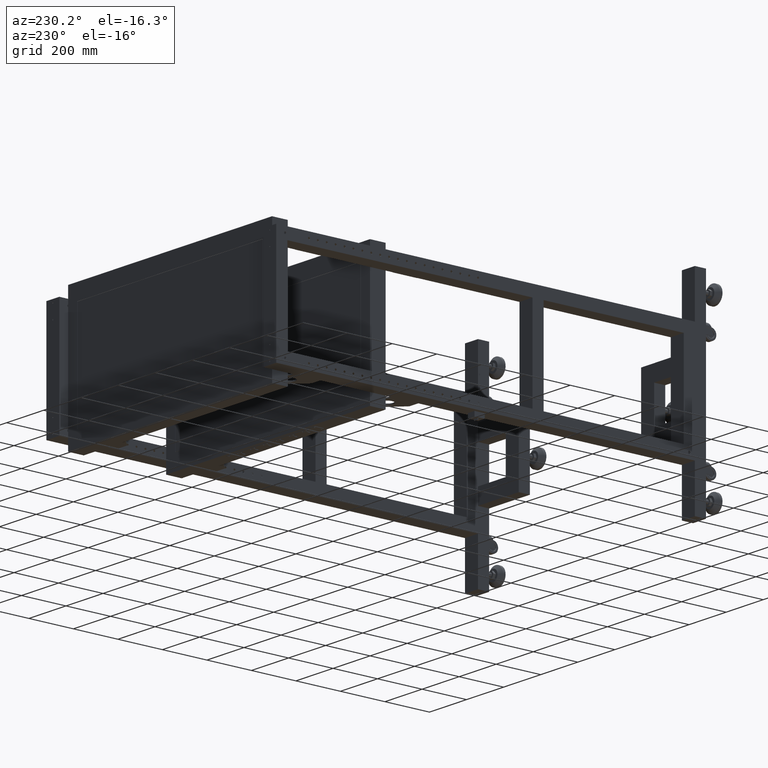
[diagram: clean part render]
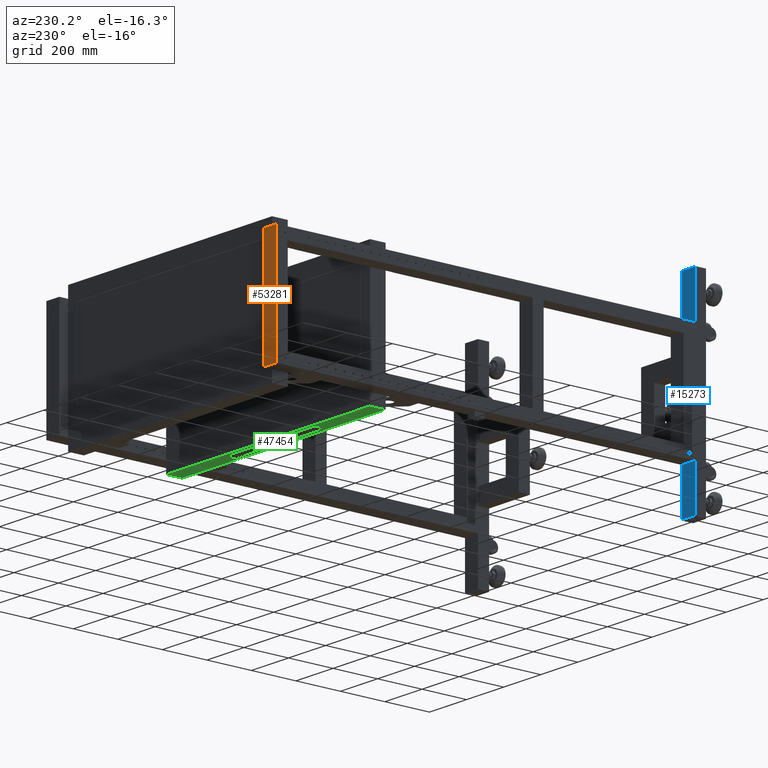
[diagram: same view with three faces highlighted in distinct colors, each labeled with its STEP entity id]
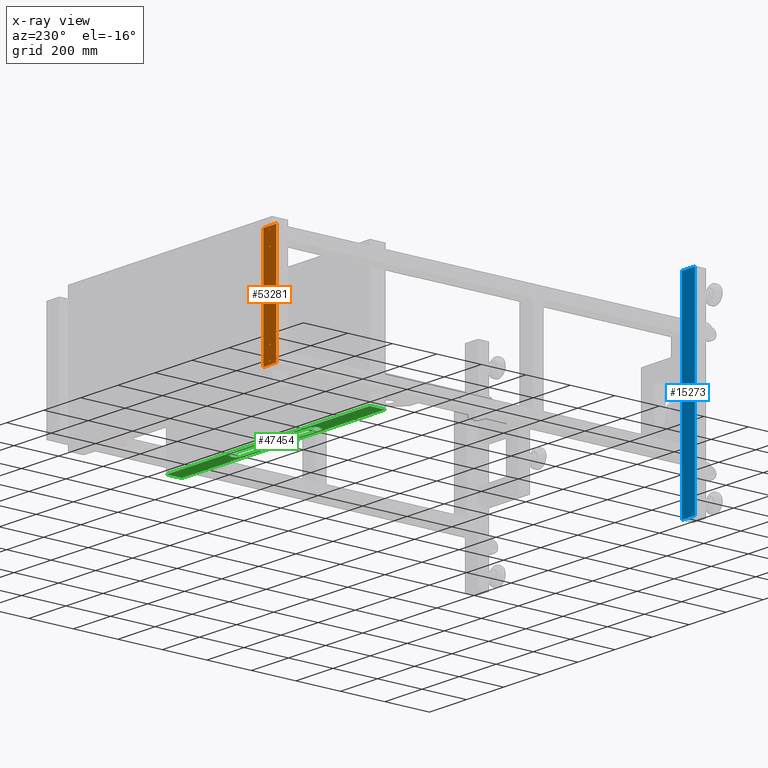
[diagram: x-ray of the same camera — body ghosted, the three highlighted faces saturated]
A machine part, auxiliary view with three faces highlighted in distinct colors.
The next image is the same camera in x-ray (body ghosted, the three faces saturated) — at least one of them is partly hidden behind the body in this view.
Their STEP definitions:

[orange] entity #53281 — the highlighted planar face has unit normal (-0, 1, 0).
#724 = CARTESIAN_POINT ( 'NONE',  ( -1268.172487437185964, 1036.441080402011039, 250.0000000000000000 ) ) ;
#1168 = DIRECTION ( 'NONE',  ( -1.000000000000000000, 0.000000000000000000, 0.000000000000000000 ) ) ;
#1653 = ORIENTED_EDGE ( 'NONE', *, *, #37654, .F. ) ;
#2034 = CARTESIAN_POINT ( 'NONE',  ( -1303.172487437186192, 1036.441080402011266, -173.9000000000000057 ) ) ;
#2188 = CARTESIAN_POINT ( 'NONE',  ( -1303.172487437186192, 1036.441080402011266, 178.0999999999999943 ) ) ;
#3969 = VERTEX_POINT ( 'NONE', #11442 ) ;
#4179 = DIRECTION ( 'NONE',  ( 0.000000000000000000, 0.000000000000000000, 1.000000000000000000 ) ) ;
#4724 = EDGE_CURVE ( 'NONE', #37463, #23758, #45545, .T. ) ;
#4791 = FACE_BOUND ( 'NONE', #45252, .T. ) ;
#7028 = EDGE_LOOP ( 'NONE', ( #25712, #56418 ) ) ;
#8930 = DIRECTION ( 'NONE',  ( 0.000000000000000000, 0.000000000000000000, 1.000000000000000000 ) ) ;
#9156 = CARTESIAN_POINT ( 'NONE',  ( -1303.172487437186192, 1036.441080402011266, -176.0000000000000000 ) ) ;
#9282 = FACE_BOUND ( 'NONE', #7028, .T. ) ;
#9719 = ORIENTED_EDGE ( 'NONE', *, *, #62881, .T. ) ;
#10814 = LINE ( 'NONE', #43172, #61868 ) ;
#10844 = DIRECTION ( 'NONE',  ( 0.000000000000000000, 1.000000000000000000, 0.000000000000000000 ) ) ;
#11095 = VERTEX_POINT ( 'NONE', #37722 ) ;
#11182 = CARTESIAN_POINT ( 'NONE',  ( -1303.172487437186192, 1036.441080402011266, 236.0000000000000000 ) ) ;
#11265 = DIRECTION ( 'NONE',  ( 0.000000000000000000, 1.000000000000000000, 0.000000000000000000 ) ) ;
#11442 = CARTESIAN_POINT ( 'NONE',  ( -1268.172487437185964, 1036.441080402011039, -250.0000000000000000 ) ) ;
#11636 = DIRECTION ( 'NONE',  ( 0.000000000000000000, 1.000000000000000000, 0.000000000000000000 ) ) ;
#13233 = EDGE_CURVE ( 'NONE', #63571, #40450, #13278, .T. ) ;
#13278 = CIRCLE ( 'NONE', #59497, 2.099999999999990763 ) ;
#13753 = DIRECTION ( 'NONE',  ( 0.000000000000000000, 1.000000000000000000, 0.000000000000000000 ) ) ;
#14728 = CARTESIAN_POINT ( 'NONE',  ( -1268.172487437185964, 1036.441080402011039, 248.0000000000000000 ) ) ;
#15119 = DIRECTION ( 'NONE',  ( 1.000000000000000000, 0.000000000000000000, 0.000000000000000000 ) ) ;
#15655 = DIRECTION ( 'NONE',  ( 0.000000000000000000, 0.000000000000000000, 1.000000000000000000 ) ) ;
#15855 = CIRCLE ( 'NONE', #19146, 2.099999999999990763 ) ;
#16365 = CARTESIAN_POINT ( 'NONE',  ( -1303.172487437186192, 1036.441080402011266, 236.0000000000000000 ) ) ;
#17783 = EDGE_LOOP ( 'NONE', ( #1653, #67075, #32835, #9719 ) ) ;
#19146 = AXIS2_PLACEMENT_3D ( 'NONE', #11182, #10844, #59034 ) ;
#19605 = CARTESIAN_POINT ( 'NONE',  ( -1338.172487437185964, 1036.441080402011039, 248.0000000000000000 ) ) ;
#20484 = DIRECTION ( 'NONE',  ( 0.000000000000000000, 1.000000000000000000, 0.000000000000000000 ) ) ;
#20857 = EDGE_CURVE ( 'NONE', #3969, #63687, #29563, .T. ) ;
#20917 = DIRECTION ( 'NONE',  ( 0.000000000000000000, 0.000000000000000000, -1.000000000000000000 ) ) ;
#20991 = ORIENTED_EDGE ( 'NONE', *, *, #13233, .F. ) ;
#21867 = DIRECTION ( 'NONE',  ( 0.000000000000000000, 1.000000000000000000, 0.000000000000000000 ) ) ;
#23176 = VERTEX_POINT ( 'NONE', #63813 ) ;
#23386 = AXIS2_PLACEMENT_3D ( 'NONE', #47466, #11636, #31952 ) ;
#23484 = VERTEX_POINT ( 'NONE', #724 ) ;
#23687 = DIRECTION ( 'NONE',  ( 0.000000000000000000, 1.000000000000000000, 0.000000000000000000 ) ) ;
#23758 = VERTEX_POINT ( 'NONE', #53990 ) ;
#25279 = CARTESIAN_POINT ( 'NONE',  ( -1303.172487437186192, 1036.441080402011266, -238.0999999999999943 ) ) ;
#25533 = AXIS2_PLACEMENT_3D ( 'NONE', #19605, #62626, #15119 ) ;
#25535 = CIRCLE ( 'NONE', #48612, 2.099999999999990763 ) ;
#25712 = ORIENTED_EDGE ( 'NONE', *, *, #59408, .F. ) ;
#26067 = DIRECTION ( 'NONE',  ( 0.000000000000000000, 0.000000000000000000, 1.000000000000000000 ) ) ;
#27765 = CARTESIAN_POINT ( 'NONE',  ( -1303.172487437186192, 1036.441080402011266, -236.0000000000000000 ) ) ;
#29563 = LINE ( 'NONE', #55747, #46451 ) ;
#30151 = AXIS2_PLACEMENT_3D ( 'NONE', #9156, #20484, #15655 ) ;
#30708 = VECTOR ( 'NONE', #26067, 1000.000000000000000 ) ;
#30950 = FACE_OUTER_BOUND ( 'NONE', #17783, .T. ) ;
#31952 = DIRECTION ( 'NONE',  ( 0.000000000000000000, 0.000000000000000000, -1.000000000000000000 ) ) ;
#32150 = EDGE_LOOP ( 'NONE', ( #39353, #32401 ) ) ;
#32255 = DIRECTION ( 'NONE',  ( 0.000000000000000000, 0.000000000000000000, 1.000000000000000000 ) ) ;
#32401 = ORIENTED_EDGE ( 'NONE', *, *, #41545, .F. ) ;
#32835 = ORIENTED_EDGE ( 'NONE', *, *, #20857, .T. ) ;
#32960 = VERTEX_POINT ( 'NONE', #2188 ) ;
#36809 = CIRCLE ( 'NONE', #43394, 2.099999999999990763 ) ;
#37463 = VERTEX_POINT ( 'NONE', #57423 ) ;
#37654 = EDGE_CURVE ( 'NONE', #23484, #11095, #10814, .T. ) ;
#37722 = CARTESIAN_POINT ( 'NONE',  ( -1338.172487437185964, 1036.441080402011039, 250.0000000000000000 ) ) ;
#39290 = AXIS2_PLACEMENT_3D ( 'NONE', #60893, #23687, #20917 ) ;
#39353 = ORIENTED_EDGE ( 'NONE', *, *, #4724, .F. ) ;
#39855 = EDGE_LOOP ( 'NONE', ( #66772, #48394 ) ) ;
#40450 = VERTEX_POINT ( 'NONE', #58688 ) ;
#40612 = CARTESIAN_POINT ( 'NONE',  ( -1303.172487437186192, 1036.441080402011266, -236.0000000000000000 ) ) ;
#41428 = EDGE_CURVE ( 'NONE', #59350, #23176, #47751, .T. ) ;
#41545 = EDGE_CURVE ( 'NONE', #23758, #37463, #15855, .T. ) ;
#41574 = LINE ( 'NONE', #14728, #30708 ) ;
#43146 = CIRCLE ( 'NONE', #23386, 2.099999999999990763 ) ;
#43172 = CARTESIAN_POINT ( 'NONE',  ( -1338.172487437185964, 1036.441080402011039, 250.0000000000000000 ) ) ;
#43394 = AXIS2_PLACEMENT_3D ( 'NONE', #27765, #11265, #32255 ) ;
#43512 = CARTESIAN_POINT ( 'NONE',  ( -1338.172487437185964, 1036.441080402011039, -250.0000000000000000 ) ) ;
#44679 = DIRECTION ( 'NONE',  ( 0.000000000000000000, 0.000000000000000000, 1.000000000000000000 ) ) ;
#45252 = EDGE_LOOP ( 'NONE', ( #61513, #20991 ) ) ;
#45502 = DIRECTION ( 'NONE',  ( 0.000000000000000000, 1.000000000000000000, 0.000000000000000000 ) ) ;
#45545 = CIRCLE ( 'NONE', #59844, 2.099999999999990763 ) ;
#45873 = CIRCLE ( 'NONE', #39290, 2.099999999999990763 ) ;
#46451 = VECTOR ( 'NONE', #54724, 1000.000000000000000 ) ;
#47466 = CARTESIAN_POINT ( 'NONE',  ( -1303.172487437186192, 1036.441080402011266, 176.0000000000000000 ) ) ;
#47751 = CIRCLE ( 'NONE', #30151, 2.099999999999990763 ) ;
#48394 = ORIENTED_EDGE ( 'NONE', *, *, #51978, .F. ) ;
#48514 = CARTESIAN_POINT ( 'NONE',  ( -1303.172487437186192, 1036.441080402011266, 173.9000000000000057 ) ) ;
#48612 = AXIS2_PLACEMENT_3D ( 'NONE', #51684, #45502, #4179 ) ;
#49713 = EDGE_CURVE ( 'NONE', #3969, #23484, #41574, .T. ) ;
#51684 = CARTESIAN_POINT ( 'NONE',  ( -1303.172487437186192, 1036.441080402011266, -176.0000000000000000 ) ) ;
#51978 = EDGE_CURVE ( 'NONE', #23176, #59350, #25535, .T. ) ;
#52848 = VECTOR ( 'NONE', #44679, 1000.000000000000000 ) ;
#53281 = ADVANCED_FACE ( 'NONE', ( #30950, #62965, #4791, #9282, #57454 ), #56776, .T. ) ;
#53451 = EDGE_CURVE ( 'NONE', #56339, #32960, #43146, .T. ) ;
#53876 = DIRECTION ( 'NONE',  ( 0.000000000000000000, 0.000000000000000000, -1.000000000000000000 ) ) ;
#53990 = CARTESIAN_POINT ( 'NONE',  ( -1303.172487437186192, 1036.441080402011266, 233.9000000000000057 ) ) ;
#54724 = DIRECTION ( 'NONE',  ( -1.000000000000000000, 0.000000000000000000, 0.000000000000000000 ) ) ;
#55747 = CARTESIAN_POINT ( 'NONE',  ( -1338.172487437185964, 1036.441080402011039, -250.0000000000000000 ) ) ;
#56028 = CARTESIAN_POINT ( 'NONE',  ( -1338.172487437185964, 1036.441080402011039, 248.0000000000000000 ) ) ;
#56339 = VERTEX_POINT ( 'NONE', #48514 ) ;
#56418 = ORIENTED_EDGE ( 'NONE', *, *, #53451, .F. ) ;
#56776 = PLANE ( 'NONE',  #25533 ) ;
#57423 = CARTESIAN_POINT ( 'NONE',  ( -1303.172487437186192, 1036.441080402011266, 238.0999999999999659 ) ) ;
#57454 = FACE_BOUND ( 'NONE', #32150, .T. ) ;
#58688 = CARTESIAN_POINT ( 'NONE',  ( -1303.172487437186192, 1036.441080402011266, -233.9000000000000057 ) ) ;
#59034 = DIRECTION ( 'NONE',  ( 0.000000000000000000, 0.000000000000000000, -1.000000000000000000 ) ) ;
#59350 = VERTEX_POINT ( 'NONE', #2034 ) ;
#59408 = EDGE_CURVE ( 'NONE', #32960, #56339, #45873, .T. ) ;
#59497 = AXIS2_PLACEMENT_3D ( 'NONE', #40612, #13753, #8930 ) ;
#59844 = AXIS2_PLACEMENT_3D ( 'NONE', #16365, #21867, #53876 ) ;
#60893 = CARTESIAN_POINT ( 'NONE',  ( -1303.172487437186192, 1036.441080402011266, 176.0000000000000000 ) ) ;
#61513 = ORIENTED_EDGE ( 'NONE', *, *, #67669, .F. ) ;
#61545 = LINE ( 'NONE', #56028, #52848 ) ;
#61868 = VECTOR ( 'NONE', #1168, 1000.000000000000000 ) ;
#62626 = DIRECTION ( 'NONE',  ( -0.000000000000000000, 1.000000000000000000, 0.000000000000000000 ) ) ;
#62881 = EDGE_CURVE ( 'NONE', #63687, #11095, #61545, .T. ) ;
#62965 = FACE_BOUND ( 'NONE', #39855, .T. ) ;
#63571 = VERTEX_POINT ( 'NONE', #25279 ) ;
#63687 = VERTEX_POINT ( 'NONE', #43512 ) ;
#63813 = CARTESIAN_POINT ( 'NONE',  ( -1303.172487437186192, 1036.441080402011266, -178.0999999999999943 ) ) ;
#66772 = ORIENTED_EDGE ( 'NONE', *, *, #41428, .F. ) ;
#67075 = ORIENTED_EDGE ( 'NONE', *, *, #49713, .F. ) ;
#67669 = EDGE_CURVE ( 'NONE', #40450, #63571, #36809, .T. ) ;

[blue] entity #15273 — the highlighted planar face has unit normal (-0, 1, 0).
#527 = EDGE_CURVE ( 'NONE', #46925, #2396, #20238, .T. ) ;
#1052 = VECTOR ( 'NONE', #30953, 1000.000000000000000 ) ;
#2162 = EDGE_CURVE ( 'NONE', #55740, #2396, #36686, .T. ) ;
#2396 = VERTEX_POINT ( 'NONE', #29743 ) ;
#5081 = DIRECTION ( 'NONE',  ( 0.000000000000000000, 0.000000000000000000, 1.000000000000000000 ) ) ;
#5208 = FACE_OUTER_BOUND ( 'NONE', #46177, .T. ) ;
#9853 = DIRECTION ( 'NONE',  ( -1.000000000000000000, 0.000000000000000000, 0.000000000000000000 ) ) ;
#12748 = ORIENTED_EDGE ( 'NONE', *, *, #61349, .F. ) ;
#12842 = CARTESIAN_POINT ( 'NONE',  ( -1268.172487437184827, -844.5589195979879378, -448.0000000000000568 ) ) ;
#13212 = CARTESIAN_POINT ( 'NONE',  ( -1338.172487437185055, -844.5589195979879378, -448.0000000000000568 ) ) ;
#15273 = ADVANCED_FACE ( 'NONE', ( #5208 ), #21039, .T. ) ;
#19792 = ORIENTED_EDGE ( 'NONE', *, *, #2162, .F. ) ;
#19946 = CARTESIAN_POINT ( 'NONE',  ( -1268.172487437184827, -844.5589195979879378, -448.0000000000000568 ) ) ;
#20238 = LINE ( 'NONE', #47432, #47189 ) ;
#21039 = PLANE ( 'NONE',  #55631 ) ;
#26455 = LINE ( 'NONE', #19946, #1052 ) ;
#29743 = CARTESIAN_POINT ( 'NONE',  ( -1338.172487437185055, -844.5589195979879378, 447.9999999999999432 ) ) ;
#30953 = DIRECTION ( 'NONE',  ( 0.000000000000000000, 0.000000000000000000, 1.000000000000000000 ) ) ;
#34214 = DIRECTION ( 'NONE',  ( -1.000000000000000000, 0.000000000000000000, 0.000000000000000000 ) ) ;
#35521 = DIRECTION ( 'NONE',  ( 1.000000000000000000, 0.000000000000000000, 0.000000000000000000 ) ) ;
#36686 = LINE ( 'NONE', #57010, #53601 ) ;
#37775 = VERTEX_POINT ( 'NONE', #12842 ) ;
#40695 = DIRECTION ( 'NONE',  ( -0.000000000000000000, 1.000000000000000000, 0.000000000000000000 ) ) ;
#42036 = CARTESIAN_POINT ( 'NONE',  ( -1338.172487437185055, -844.5589195979879378, -448.0000000000000568 ) ) ;
#46177 = EDGE_LOOP ( 'NONE', ( #19792, #12748, #65281, #57001 ) ) ;
#46925 = VERTEX_POINT ( 'NONE', #50483 ) ;
#47189 = VECTOR ( 'NONE', #5081, 1000.000000000000000 ) ;
#47432 = CARTESIAN_POINT ( 'NONE',  ( -1338.172487437185055, -844.5589195979879378, -448.0000000000000568 ) ) ;
#50483 = CARTESIAN_POINT ( 'NONE',  ( -1338.172487437185055, -844.5589195979879378, -448.0000000000000568 ) ) ;
#51516 = EDGE_CURVE ( 'NONE', #37775, #46925, #59377, .T. ) ;
#53601 = VECTOR ( 'NONE', #9853, 1000.000000000000000 ) ;
#55631 = AXIS2_PLACEMENT_3D ( 'NONE', #42036, #40695, #35521 ) ;
#55740 = VERTEX_POINT ( 'NONE', #56884 ) ;
#56884 = CARTESIAN_POINT ( 'NONE',  ( -1268.172487437184827, -844.5589195979879378, 447.9999999999999432 ) ) ;
#57001 = ORIENTED_EDGE ( 'NONE', *, *, #527, .T. ) ;
#57010 = CARTESIAN_POINT ( 'NONE',  ( -1338.172487437185055, -844.5589195979879378, 447.9999999999999432 ) ) ;
#58488 = VECTOR ( 'NONE', #34214, 1000.000000000000000 ) ;
#59377 = LINE ( 'NONE', #13212, #58488 ) ;
#61349 = EDGE_CURVE ( 'NONE', #37775, #55740, #26455, .T. ) ;
#65281 = ORIENTED_EDGE ( 'NONE', *, *, #51516, .T. ) ;

[green] entity #47454 — the highlighted planar face has unit normal (0, -0, 1).
#8 = ORIENTED_EDGE ( 'NONE', *, *, #32537, .F. ) ;
#85 = CARTESIAN_POINT ( 'NONE',  ( -947.1724874371860778, 503.3410804020126648, -300.0000000000000568 ) ) ;
#1068 = VERTEX_POINT ( 'NONE', #6027 ) ;
#1090 = DIRECTION ( 'NONE',  ( 0.000000000000000000, 1.000000000000000000, 0.000000000000000000 ) ) ;
#1174 = AXIS2_PLACEMENT_3D ( 'NONE', #15262, #25581, #36262 ) ;
#1208 = CARTESIAN_POINT ( 'NONE',  ( -938.1724874371861915, 546.4410804020125170, -299.9999999999999432 ) ) ;
#1372 = DIRECTION ( 'NONE',  ( 0.000000000000000000, 1.000000000000000000, 2.042911185666243997E-15 ) ) ;
#1376 = DIRECTION ( 'NONE',  ( 0.000000000000000000, 1.000000000000000000, 0.000000000000000000 ) ) ;
#1559 = EDGE_CURVE ( 'NONE', #6452, #9640, #2734, .T. ) ;
#1950 = LINE ( 'NONE', #27413, #13923 ) ;
#2217 = DIRECTION ( 'NONE',  ( 0.000000000000000000, 2.999999999999999839E-15, -1.000000000000000000 ) ) ;
#2221 = VECTOR ( 'NONE', #18461, 1000.000000000000000 ) ;
#2298 = CARTESIAN_POINT ( 'NONE',  ( -938.1724874371861915, 511.9410804020125738, -300.0000000000000568 ) ) ;
#2363 = AXIS2_PLACEMENT_3D ( 'NONE', #38143, #11962, #32951 ) ;
#2734 = LINE ( 'NONE', #64037, #59066 ) ;
#2748 = ORIENTED_EDGE ( 'NONE', *, *, #29635, .T. ) ;
#2930 = AXIS2_PLACEMENT_3D ( 'NONE', #20797, #62466, #66378 ) ;
#3392 = AXIS2_PLACEMENT_3D ( 'NONE', #7965, #17961, #54452 ) ;
#3997 = DIRECTION ( 'NONE',  ( 0.000000000000000000, 2.999999999999999839E-15, -1.000000000000000000 ) ) ;
#4045 = DIRECTION ( 'NONE',  ( 0.000000000000000000, 1.000000000000000000, 2.999999999999999839E-15 ) ) ;
#4252 = VECTOR ( 'NONE', #7237, 1000.000000000000000 ) ;
#4433 = EDGE_CURVE ( 'NONE', #56427, #1068, #12501, .T. ) ;
#4597 = PLANE ( 'NONE',  #1174 ) ;
#4609 = CARTESIAN_POINT ( 'NONE',  ( -170.1724874371841736, 556.9410804020129717, -299.9999999999999432 ) ) ;
#5284 = AXIS2_PLACEMENT_3D ( 'NONE', #28030, #2217, #11853 ) ;
#5343 = LINE ( 'NONE', #45731, #52888 ) ;
#5437 = LINE ( 'NONE', #31923, #50869 ) ;
#5445 = DIRECTION ( 'NONE',  ( 0.000000000000000000, 1.000000000000000000, 0.000000000000000000 ) ) ;
#6027 = CARTESIAN_POINT ( 'NONE',  ( -947.1724874371860778, 535.3410804020127216, -300.0000000000000000 ) ) ;
#6330 = CARTESIAN_POINT ( 'NONE',  ( -481.1724874371860778, 516.9410804020126307, -300.0000000000000568 ) ) ;
#6452 = VERTEX_POINT ( 'NONE', #32203 ) ;
#6453 = CIRCLE ( 'NONE', #44937, 5.000000000000004441 ) ;
#6855 = CARTESIAN_POINT ( 'NONE',  ( -946.1724874371861915, 526.9410804020388923, -300.0000000000000000 ) ) ;
#7237 = DIRECTION ( 'NONE',  ( 0.000000000000000000, -1.000000000000000000, -2.603491776919587014E-15 ) ) ;
#7352 = CARTESIAN_POINT ( 'NONE',  ( -1266.172487437185964, 556.9410804020126307, -299.9999999999999432 ) ) ;
#7517 = CARTESIAN_POINT ( 'NONE',  ( -486.1724874371860210, 526.9410804020129717, -300.0000000000000000 ) ) ;
#7965 = CARTESIAN_POINT ( 'NONE',  ( -485.1724874371860778, 537.9410804020157002, -299.9999999999999432 ) ) ;
#8894 = CIRCLE ( 'NONE', #3392, 2.599999999999935696 ) ;
#9091 = FACE_BOUND ( 'NONE', #55540, .T. ) ;
#9425 = ORIENTED_EDGE ( 'NONE', *, *, #49813, .F. ) ;
#9558 = CIRCLE ( 'NONE', #13914, 2.599999999999935696 ) ;
#9640 = VERTEX_POINT ( 'NONE', #1208 ) ;
#9770 = FACE_BOUND ( 'NONE', #21217, .T. ) ;
#9835 = ORIENTED_EDGE ( 'NONE', *, *, #57004, .F. ) ;
#10079 = ORIENTED_EDGE ( 'NONE', *, *, #55260, .F. ) ;
#10280 = EDGE_CURVE ( 'NONE', #61636, #57956, #16036, .T. ) ;
#10298 = CARTESIAN_POINT ( 'NONE',  ( -946.1724874371861915, 511.9410804020125738, -300.0000000000000568 ) ) ;
#11208 = VERTEX_POINT ( 'NONE', #18403 ) ;
#11338 = DIRECTION ( 'NONE',  ( 0.000000000000000000, 1.000000000000000000, 0.000000000000000000 ) ) ;
#11557 = DIRECTION ( 'NONE',  ( 2.653611717788262918E-16, -1.000000000000000000, -2.603491776919587014E-15 ) ) ;
#11618 = AXIS2_PLACEMENT_3D ( 'NONE', #24304, #3997, #14666 ) ;
#11853 = DIRECTION ( 'NONE',  ( 0.000000000000000000, 1.000000000000000000, 0.000000000000000000 ) ) ;
#11962 = DIRECTION ( 'NONE',  ( 0.000000000000000000, -2.999999999999999839E-15, 1.000000000000000000 ) ) ;
#12346 = DIRECTION ( 'NONE',  ( 0.000000000000000000, 1.000000000000000000, 0.000000000000000000 ) ) ;
#12398 = LINE ( 'NONE', #54404, #4252 ) ;
#12501 = CIRCLE ( 'NONE', #34470, 2.600000000000046718 ) ;
#13063 = AXIS2_PLACEMENT_3D ( 'NONE', #6855, #32673, #11338 ) ;
#13358 = VECTOR ( 'NONE', #48694, 1000.000000000000000 ) ;
#13914 = AXIS2_PLACEMENT_3D ( 'NONE', #47160, #33352, #12346 ) ;
#13923 = VECTOR ( 'NONE', #47750, 1000.000000000000000 ) ;
#14483 = CARTESIAN_POINT ( 'NONE',  ( -938.1724874371861915, 497.4410804020126307, -300.0000000000001137 ) ) ;
#14532 = AXIS2_PLACEMENT_3D ( 'NONE', #67098, #67763, #29893 ) ;
#14666 = DIRECTION ( 'NONE',  ( 0.000000000000000000, 1.000000000000000000, 0.000000000000000000 ) ) ;
#15262 = CARTESIAN_POINT ( 'NONE',  ( -2366.172487437186192, 556.9410804020126307, -299.9999999999999432 ) ) ;
#15385 = VECTOR ( 'NONE', #46309, 1000.000000000000000 ) ;
#15429 = ORIENTED_EDGE ( 'NONE', *, *, #4433, .F. ) ;
#16003 = ORIENTED_EDGE ( 'NONE', *, *, #42689, .F. ) ;
#16036 = CIRCLE ( 'NONE', #39142, 2.599999999999935696 ) ;
#16265 = ORIENTED_EDGE ( 'NONE', *, *, #1559, .F. ) ;
#16593 = ORIENTED_EDGE ( 'NONE', *, *, #34221, .F. ) ;
#17141 = ORIENTED_EDGE ( 'NONE', *, *, #53812, .T. ) ;
#17202 = DIRECTION ( 'NONE',  ( 0.000000000000000000, 2.999999999999999839E-15, -1.000000000000000000 ) ) ;
#17503 = VECTOR ( 'NONE', #38649, 1000.000000000000000 ) ;
#17524 = CARTESIAN_POINT ( 'NONE',  ( -947.1724874371860778, 540.5410804020125397, -299.9999999999999432 ) ) ;
#17774 = CARTESIAN_POINT ( 'NONE',  ( -485.1724874371860778, 535.3410804020157912, -300.0000000000000000 ) ) ;
#17778 = CIRCLE ( 'NONE', #2363, 5.000000000000004441 ) ;
#17831 = VERTEX_POINT ( 'NONE', #6330 ) ;
#17961 = DIRECTION ( 'NONE',  ( 0.000000000000000000, 2.999999999999999839E-15, -1.000000000000000000 ) ) ;
#18403 = CARTESIAN_POINT ( 'NONE',  ( -170.1724874371841736, 486.9410804020129149, -300.0000000000001137 ) ) ;
#18461 = DIRECTION ( 'NONE',  ( 3.062684205862465112E-14, 1.000000000000000000, 2.042911185667979886E-15 ) ) ;
#18591 = VERTEX_POINT ( 'NONE', #49878 ) ;
#18674 = EDGE_CURVE ( 'NONE', #59078, #11208, #5343, .T. ) ;
#18694 = VECTOR ( 'NONE', #55596, 1000.000000000000000 ) ;
#18843 = EDGE_CURVE ( 'NONE', #49947, #40712, #53850, .T. ) ;
#20038 = EDGE_CURVE ( 'NONE', #18591, #23671, #5437, .T. ) ;
#20360 = VERTEX_POINT ( 'NONE', #21864 ) ;
#20536 = ORIENTED_EDGE ( 'NONE', *, *, #59133, .F. ) ;
#20672 = CARTESIAN_POINT ( 'NONE',  ( -486.1724874371860210, 511.9410804020125738, -300.0000000000000568 ) ) ;
#20797 = CARTESIAN_POINT ( 'NONE',  ( -947.1724874371860778, 537.9410804020126307, -299.9999999999999432 ) ) ;
#20935 = DIRECTION ( 'NONE',  ( 0.000000000000000000, 2.999999999999999839E-15, -1.000000000000000000 ) ) ;
#21217 = EDGE_LOOP ( 'NONE', ( #20536, #64885 ) ) ;
#21864 = CARTESIAN_POINT ( 'NONE',  ( -485.1724874371860778, 540.5410804020156093, -299.9999999999999432 ) ) ;
#21946 = ORIENTED_EDGE ( 'NONE', *, *, #25327, .F. ) ;
#21958 = EDGE_CURVE ( 'NONE', #40712, #35693, #62443, .T. ) ;
#22101 = EDGE_CURVE ( 'NONE', #45485, #6452, #22799, .T. ) ;
#22190 = EDGE_CURVE ( 'NONE', #45485, #22739, #35084, .T. ) ;
#22277 = DIRECTION ( 'NONE',  ( -1.000000000000000000, -1.441154887734540166E-14, -4.323464663203620161E-29 ) ) ;
#22328 = CARTESIAN_POINT ( 'NONE',  ( -485.1724874371860778, 503.3410804020157343, -300.0000000000000568 ) ) ;
#22685 = CARTESIAN_POINT ( 'NONE',  ( -494.1724874371860210, 546.4410804020125170, -299.9999999999999432 ) ) ;
#22738 = EDGE_LOOP ( 'NONE', ( #24800, #22779, #2748, #17141 ) ) ;
#22739 = VERTEX_POINT ( 'NONE', #43912 ) ;
#22779 = ORIENTED_EDGE ( 'NONE', *, *, #23471, .F. ) ;
#22799 = LINE ( 'NONE', #33473, #17503 ) ;
#22948 = VERTEX_POINT ( 'NONE', #4609 ) ;
#23317 = VERTEX_POINT ( 'NONE', #52367 ) ;
#23471 = EDGE_CURVE ( 'NONE', #37888, #59078, #12398, .T. ) ;
#23559 = AXIS2_PLACEMENT_3D ( 'NONE', #27587, #42062, #1090 ) ;
#23671 = VERTEX_POINT ( 'NONE', #10298 ) ;
#23929 = CARTESIAN_POINT ( 'NONE',  ( -494.1724874371860210, 531.9410804020130854, -300.0000000000000000 ) ) ;
#24304 = CARTESIAN_POINT ( 'NONE',  ( -485.1724874371860778, 505.9410804020157002, -300.0000000000000568 ) ) ;
#24800 = ORIENTED_EDGE ( 'NONE', *, *, #18674, .F. ) ;
#25056 = DIRECTION ( 'NONE',  ( 1.000000000000000000, 0.000000000000000000, -0.000000000000000000 ) ) ;
#25327 = EDGE_CURVE ( 'NONE', #33931, #22739, #30200, .T. ) ;
#25581 = DIRECTION ( 'NONE',  ( 0.000000000000000000, -2.603491776919587014E-15, 1.000000000000000000 ) ) ;
#25672 = VERTEX_POINT ( 'NONE', #66977 ) ;
#25958 = CARTESIAN_POINT ( 'NONE',  ( -494.1724874371860210, 546.4410804020125170, -299.9999999999999432 ) ) ;
#26283 = EDGE_LOOP ( 'NONE', ( #61471, #45067, #42637, #67727, #50764, #8, #10079, #51212, #16265, #59615, #49831, #21946, #59156, #51564, #9425, #46334 ) ) ;
#27121 = EDGE_CURVE ( 'NONE', #43557, #49947, #1950, .T. ) ;
#27413 = CARTESIAN_POINT ( 'NONE',  ( -494.1724874371860210, 511.9410804020125738, -300.0000000000000568 ) ) ;
#27587 = CARTESIAN_POINT ( 'NONE',  ( -947.1724874371860778, 505.9410804020125738, -300.0000000000000568 ) ) ;
#27726 = EDGE_LOOP ( 'NONE', ( #9835, #15429 ) ) ;
#28030 = CARTESIAN_POINT ( 'NONE',  ( -947.1724874371860778, 505.9410804020125738, -300.0000000000000568 ) ) ;
#28074 = CIRCLE ( 'NONE', #11618, 2.599999999999935696 ) ;
#28156 = DIRECTION ( 'NONE',  ( 0.000000000000000000, -2.999999999999999839E-15, 1.000000000000000000 ) ) ;
#29635 = EDGE_CURVE ( 'NONE', #37888, #22948, #36301, .T. ) ;
#29746 = CARTESIAN_POINT ( 'NONE',  ( -938.1724874371861915, 497.4410804020126307, -300.0000000000001137 ) ) ;
#29893 = DIRECTION ( 'NONE',  ( 0.000000000000000000, 1.000000000000000000, 0.000000000000000000 ) ) ;
#30200 = LINE ( 'NONE', #51211, #51771 ) ;
#30487 = CARTESIAN_POINT ( 'NONE',  ( -494.1724874371860210, 511.9410804020125738, -300.0000000000000568 ) ) ;
#31923 = CARTESIAN_POINT ( 'NONE',  ( -951.1724874371860778, 511.9410804020125738, -300.0000000000000568 ) ) ;
#32141 = DIRECTION ( 'NONE',  ( 1.000000000000000000, 0.000000000000000000, -0.000000000000000000 ) ) ;
#32203 = CARTESIAN_POINT ( 'NONE',  ( -938.1724874371861915, 531.9410804020385513, -300.0000000000000000 ) ) ;
#32218 = LINE ( 'NONE', #37053, #67379 ) ;
#32537 = EDGE_CURVE ( 'NONE', #39837, #60112, #50093, .T. ) ;
#32673 = DIRECTION ( 'NONE',  ( 0.000000000000000000, -2.999999999999999839E-15, 1.000000000000000000 ) ) ;
#32869 = VECTOR ( 'NONE', #50762, 1000.000000000000000 ) ;
#32951 = DIRECTION ( 'NONE',  ( 0.000000000000000000, 1.000000000000000000, 0.000000000000000000 ) ) ;
#33352 = DIRECTION ( 'NONE',  ( 0.000000000000000000, 2.999999999999999839E-15, -1.000000000000000000 ) ) ;
#33473 = CARTESIAN_POINT ( 'NONE',  ( -951.1724874371860778, 531.9410804020390060, -300.0000000000000000 ) ) ;
#33773 = EDGE_CURVE ( 'NONE', #9640, #36012, #51538, .T. ) ;
#33931 = VERTEX_POINT ( 'NONE', #47719 ) ;
#34221 = EDGE_CURVE ( 'NONE', #50579, #23317, #53263, .T. ) ;
#34470 = AXIS2_PLACEMENT_3D ( 'NONE', #59225, #17202, #1376 ) ;
#35084 = CIRCLE ( 'NONE', #13063, 5.000000000000004441 ) ;
#35284 = LINE ( 'NONE', #25958, #51061 ) ;
#35583 = CIRCLE ( 'NONE', #14532, 5.000000000000004441 ) ;
#35693 = VERTEX_POINT ( 'NONE', #14483 ) ;
#36012 = VERTEX_POINT ( 'NONE', #22685 ) ;
#36062 = CARTESIAN_POINT ( 'NONE',  ( -494.1724874371860210, 531.9410804020130854, -300.0000000000000000 ) ) ;
#36160 = EDGE_LOOP ( 'NONE', ( #16003, #57311 ) ) ;
#36262 = DIRECTION ( 'NONE',  ( 0.000000000000000000, -1.000000000000000000, -2.603491776919587014E-15 ) ) ;
#36301 = LINE ( 'NONE', #62804, #54826 ) ;
#37053 = CARTESIAN_POINT ( 'NONE',  ( -170.1724874371841736, 556.9410804020129717, -299.9999999999999432 ) ) ;
#37239 = EDGE_CURVE ( 'NONE', #33931, #23671, #35583, .T. ) ;
#37835 = VECTOR ( 'NONE', #51190, 1000.000000000000000 ) ;
#37888 = VERTEX_POINT ( 'NONE', #7352 ) ;
#37932 = CARTESIAN_POINT ( 'NONE',  ( -494.1724874371860210, 497.4410804020126307, -300.0000000000001137 ) ) ;
#38143 = CARTESIAN_POINT ( 'NONE',  ( -486.1724874371860210, 516.9410804020126307, -300.0000000000000568 ) ) ;
#38649 = DIRECTION ( 'NONE',  ( 1.000000000000000000, -2.855621721992514943E-14, -8.566865165977544482E-29 ) ) ;
#39142 = AXIS2_PLACEMENT_3D ( 'NONE', #47445, #20935, #5445 ) ;
#39837 = VERTEX_POINT ( 'NONE', #36062 ) ;
#39861 = DIRECTION ( 'NONE',  ( 0.000000000000000000, 1.000000000000000000, 0.000000000000000000 ) ) ;
#40073 = FACE_BOUND ( 'NONE', #26283, .T. ) ;
#40419 = FACE_BOUND ( 'NONE', #27726, .T. ) ;
#40712 = VERTEX_POINT ( 'NONE', #37932 ) ;
#41146 = VERTEX_POINT ( 'NONE', #17774 ) ;
#42062 = DIRECTION ( 'NONE',  ( 0.000000000000000000, 2.999999999999999839E-15, -1.000000000000000000 ) ) ;
#42637 = ORIENTED_EDGE ( 'NONE', *, *, #52635, .T. ) ;
#42689 = EDGE_CURVE ( 'NONE', #57956, #61636, #28074, .T. ) ;
#43557 = VERTEX_POINT ( 'NONE', #20672 ) ;
#43912 = CARTESIAN_POINT ( 'NONE',  ( -951.1724874371860778, 526.9410804020388923, -300.0000000000000000 ) ) ;
#44903 = CIRCLE ( 'NONE', #5284, 2.600000000000046718 ) ;
#44937 = AXIS2_PLACEMENT_3D ( 'NONE', #7517, #28156, #39861 ) ;
#45067 = ORIENTED_EDGE ( 'NONE', *, *, #27121, .F. ) ;
#45485 = VERTEX_POINT ( 'NONE', #49497 ) ;
#45731 = CARTESIAN_POINT ( 'NONE',  ( -2366.172487437186192, 486.9410804020126307, -300.0000000000001137 ) ) ;
#46214 = EDGE_CURVE ( 'NONE', #23317, #50579, #44903, .T. ) ;
#46309 = DIRECTION ( 'NONE',  ( 0.000000000000000000, -1.000000000000000000, -2.999999999999999839E-15 ) ) ;
#46334 = ORIENTED_EDGE ( 'NONE', *, *, #21958, .F. ) ;
#47160 = CARTESIAN_POINT ( 'NONE',  ( -485.1724874371860778, 537.9410804020157002, -299.9999999999999432 ) ) ;
#47445 = CARTESIAN_POINT ( 'NONE',  ( -485.1724874371860778, 505.9410804020157002, -300.0000000000000568 ) ) ;
#47454 = ADVANCED_FACE ( 'NONE', ( #67606, #40073, #9091, #62099, #9770, #40419 ), #4597, .F. ) ;
#47719 = CARTESIAN_POINT ( 'NONE',  ( -951.1724874371860778, 516.9410804020126307, -300.0000000000000568 ) ) ;
#47750 = DIRECTION ( 'NONE',  ( -1.000000000000000000, -5.337610695313200109E-16, -1.601283208593959875E-30 ) ) ;
#48005 = CARTESIAN_POINT ( 'NONE',  ( -494.1724874371860210, 511.9410804020125738, -300.0000000000000568 ) ) ;
#48694 = DIRECTION ( 'NONE',  ( 0.000000000000000000, -1.000000000000000000, -2.042911185667970814E-15 ) ) ;
#49497 = CARTESIAN_POINT ( 'NONE',  ( -946.1724874371861915, 531.9410804020387786, -300.0000000000000000 ) ) ;
#49813 = EDGE_CURVE ( 'NONE', #35693, #18591, #59450, .T. ) ;
#49831 = ORIENTED_EDGE ( 'NONE', *, *, #22190, .T. ) ;
#49845 = CARTESIAN_POINT ( 'NONE',  ( -485.1724874371860778, 508.5410804020157229, -300.0000000000000568 ) ) ;
#49878 = CARTESIAN_POINT ( 'NONE',  ( -938.1724874371861915, 511.9410804020125738, -300.0000000000000568 ) ) ;
#49947 = VERTEX_POINT ( 'NONE', #30487 ) ;
#50093 = LINE ( 'NONE', #23929, #18694 ) ;
#50579 = VERTEX_POINT ( 'NONE', #85 ) ;
#50670 = EDGE_CURVE ( 'NONE', #20360, #41146, #8894, .T. ) ;
#50762 = DIRECTION ( 'NONE',  ( -1.000000000000000000, -6.251255769285789110E-17, -1.875376730785736675E-31 ) ) ;
#50764 = ORIENTED_EDGE ( 'NONE', *, *, #60684, .T. ) ;
#50869 = VECTOR ( 'NONE', #22277, 1000.000000000000000 ) ;
#51061 = VECTOR ( 'NONE', #67308, 1000.000000000000000 ) ;
#51190 = DIRECTION ( 'NONE',  ( 1.000000000000000000, 6.251255769285789110E-17, 1.875376730785736675E-31 ) ) ;
#51211 = CARTESIAN_POINT ( 'NONE',  ( -951.1724874371860778, 531.9410804020390060, -300.0000000000000000 ) ) ;
#51212 = ORIENTED_EDGE ( 'NONE', *, *, #33773, .F. ) ;
#51476 = CARTESIAN_POINT ( 'NONE',  ( -481.1724874371860778, 531.9410804020130854, -300.0000000000000000 ) ) ;
#51538 = LINE ( 'NONE', #61525, #37835 ) ;
#51564 = ORIENTED_EDGE ( 'NONE', *, *, #20038, .F. ) ;
#51658 = CARTESIAN_POINT ( 'NONE',  ( -1266.172487437185964, 486.9410804020126307, -300.0000000000001137 ) ) ;
#51771 = VECTOR ( 'NONE', #4045, 1000.000000000000000 ) ;
#51800 = LINE ( 'NONE', #51476, #15385 ) ;
#52367 = CARTESIAN_POINT ( 'NONE',  ( -947.1724874371860778, 508.5410804020125966, -300.0000000000000568 ) ) ;
#52635 = EDGE_CURVE ( 'NONE', #43557, #17831, #17778, .T. ) ;
#52888 = VECTOR ( 'NONE', #25056, 1000.000000000000000 ) ;
#53263 = CIRCLE ( 'NONE', #23559, 2.600000000000046718 ) ;
#53812 = EDGE_CURVE ( 'NONE', #22948, #11208, #32218, .T. ) ;
#53850 = LINE ( 'NONE', #48005, #13358 ) ;
#54404 = CARTESIAN_POINT ( 'NONE',  ( -1266.172487437185964, 556.9410804020126307, -299.9999999999999432 ) ) ;
#54452 = DIRECTION ( 'NONE',  ( 0.000000000000000000, 1.000000000000000000, 0.000000000000000000 ) ) ;
#54826 = VECTOR ( 'NONE', #32141, 1000.000000000000000 ) ;
#55260 = EDGE_CURVE ( 'NONE', #36012, #39837, #35284, .T. ) ;
#55540 = EDGE_LOOP ( 'NONE', ( #16593, #55903 ) ) ;
#55596 = DIRECTION ( 'NONE',  ( 1.000000000000000000, -8.006416042969800163E-16, -2.401924812890939987E-30 ) ) ;
#55903 = ORIENTED_EDGE ( 'NONE', *, *, #46214, .F. ) ;
#56427 = VERTEX_POINT ( 'NONE', #17524 ) ;
#56801 = CIRCLE ( 'NONE', #2930, 2.600000000000046718 ) ;
#56912 = CARTESIAN_POINT ( 'NONE',  ( -486.1724874371860210, 531.9410804020130854, -300.0000000000000000 ) ) ;
#57004 = EDGE_CURVE ( 'NONE', #1068, #56427, #56801, .T. ) ;
#57311 = ORIENTED_EDGE ( 'NONE', *, *, #10280, .F. ) ;
#57956 = VERTEX_POINT ( 'NONE', #22328 ) ;
#59066 = VECTOR ( 'NONE', #1372, 1000.000000000000000 ) ;
#59078 = VERTEX_POINT ( 'NONE', #51658 ) ;
#59133 = EDGE_CURVE ( 'NONE', #41146, #20360, #9558, .T. ) ;
#59156 = ORIENTED_EDGE ( 'NONE', *, *, #37239, .T. ) ;
#59225 = CARTESIAN_POINT ( 'NONE',  ( -947.1724874371860778, 537.9410804020126307, -299.9999999999999432 ) ) ;
#59450 = LINE ( 'NONE', #2298, #2221 ) ;
#59615 = ORIENTED_EDGE ( 'NONE', *, *, #22101, .F. ) ;
#60112 = VERTEX_POINT ( 'NONE', #56912 ) ;
#60684 = EDGE_CURVE ( 'NONE', #25672, #60112, #6453, .T. ) ;
#61471 = ORIENTED_EDGE ( 'NONE', *, *, #18843, .F. ) ;
#61525 = CARTESIAN_POINT ( 'NONE',  ( -938.1724874371861915, 546.4410804020125170, -299.9999999999999432 ) ) ;
#61636 = VERTEX_POINT ( 'NONE', #49845 ) ;
#62099 = FACE_BOUND ( 'NONE', #36160, .T. ) ;
#62443 = LINE ( 'NONE', #29746, #32869 ) ;
#62466 = DIRECTION ( 'NONE',  ( 0.000000000000000000, 2.999999999999999839E-15, -1.000000000000000000 ) ) ;
#62804 = CARTESIAN_POINT ( 'NONE',  ( -2366.172487437186192, 556.9410804020126307, -299.9999999999999432 ) ) ;
#63587 = EDGE_CURVE ( 'NONE', #25672, #17831, #51800, .T. ) ;
#64037 = CARTESIAN_POINT ( 'NONE',  ( -938.1724874371861915, 546.4410804020125170, -299.9999999999999432 ) ) ;
#64885 = ORIENTED_EDGE ( 'NONE', *, *, #50670, .F. ) ;
#66378 = DIRECTION ( 'NONE',  ( 0.000000000000000000, 1.000000000000000000, 0.000000000000000000 ) ) ;
#66977 = CARTESIAN_POINT ( 'NONE',  ( -481.1724874371860778, 526.9410804020129717, -300.0000000000000000 ) ) ;
#67098 = CARTESIAN_POINT ( 'NONE',  ( -946.1724874371861915, 516.9410804020126307, -300.0000000000000568 ) ) ;
#67308 = DIRECTION ( 'NONE',  ( 0.000000000000000000, -1.000000000000000000, -2.042911185667941626E-15 ) ) ;
#67379 = VECTOR ( 'NONE', #11557, 1000.000000000000000 ) ;
#67606 = FACE_OUTER_BOUND ( 'NONE', #22738, .T. ) ;
#67727 = ORIENTED_EDGE ( 'NONE', *, *, #63587, .F. ) ;
#67763 = DIRECTION ( 'NONE',  ( 0.000000000000000000, -2.999999999999999839E-15, 1.000000000000000000 ) ) ;